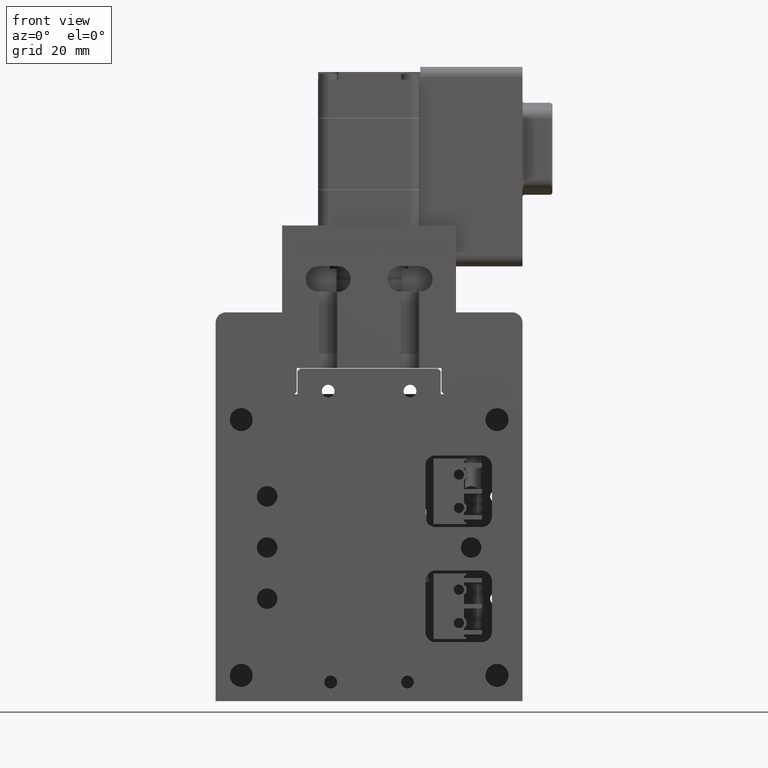
[diagram: clean part render]
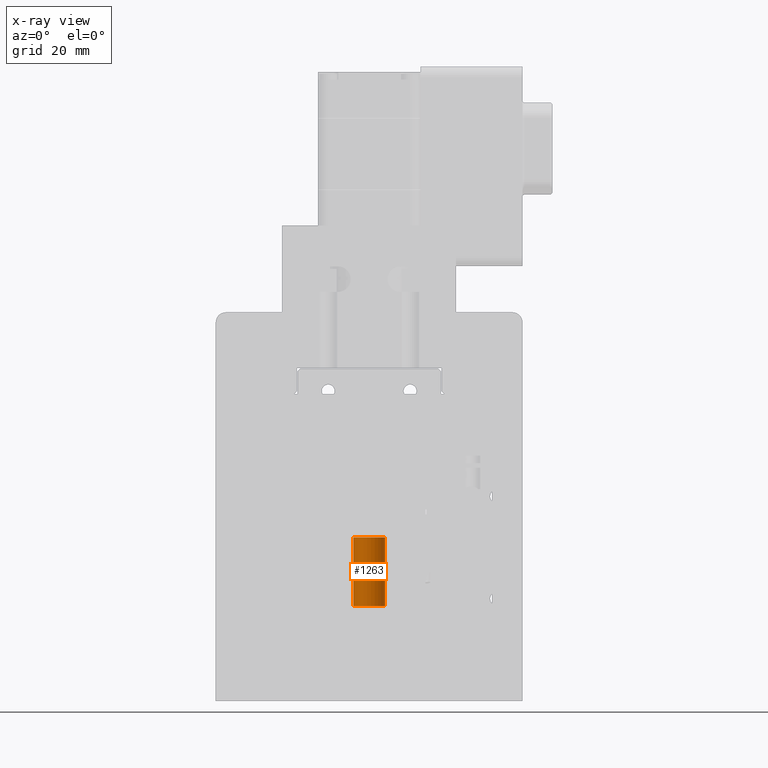
[diagram: x-ray — body ghosted, one internal face saturated and labeled with its STEP entity id]
A machine part, front view, then the same camera in x-ray: the body is ghosted and one INTERNAL B-rep face — a face not visible from any outside direction — is saturated and labeled: STEP entity #1263.
In plain terms, the highlighted cylindrical surface (edge-blend (fillet) strip) has radius 3.1 mm, axis along (-0, -0, -1).
Its self-contained STEP definition (entity closure, byte-faithful):
#178 = VERTEX_POINT ( 'NONE', #13297 ) ;
#1263 = ADVANCED_FACE ( 'NONE', ( #3171 ), #13630, .T. ) ;
#1401 = VECTOR ( 'NONE', #30462, 1000.000000000000000 ) ;
#2605 = AXIS2_PLACEMENT_3D ( 'NONE', #10799, #28682, #13406 ) ;
#2621 = CIRCLE ( 'NONE', #2605, 3.100000000000001000 ) ;
#2698 = VERTEX_POINT ( 'NONE', #4197 ) ;
#3171 = FACE_OUTER_BOUND ( 'NONE', #20297, .T. ) ;
#3283 = DIRECTION ( 'NONE',  ( -1.158893790358683100E-016, -1.290523771937503900E-017, -1.000000000000000000 ) ) ;
#3334 = CARTESIAN_POINT ( 'NONE',  ( -2.591719598807531000, -2.448187545985686300, 35.21421163981704400 ) ) ;
#4197 = CARTESIAN_POINT ( 'NONE',  ( 0.5082804011924684200, -2.448187545985685400, 64.48460270126950900 ) ) ;
#4380 = ORIENTED_EDGE ( 'NONE', *, *, #32506, .T. ) ;
#4789 = AXIS2_PLACEMENT_3D ( 'NONE', #8756, #26643, #11349 ) ;
#6356 = VECTOR ( 'NONE', #3283, 1000.000000000000000 ) ;
#7290 = CARTESIAN_POINT ( 'NONE',  ( -5.691719598807532400, -2.448187545985685900, 64.48460270126950900 ) ) ;
#8756 = CARTESIAN_POINT ( 'NONE',  ( -2.591719598807535000, -2.448187545985686300, 51.08236806439803200 ) ) ;
#10799 = CARTESIAN_POINT ( 'NONE',  ( -2.591719598807531900, -2.448187545985685900, 64.48460270126950900 ) ) ;
#10973 = DIRECTION ( 'NONE',  ( -1.158893790358683100E-016, -1.290523771937503900E-017, -1.000000000000000000 ) ) ;
#11349 = DIRECTION ( 'NONE',  ( 1.000000000000000000, 0.0000000000000000000, 0.0000000000000000000 ) ) ;
#12632 = CARTESIAN_POINT ( 'NONE',  ( 0.5082804011924702000, -2.448187545985685900, 35.21421163981704400 ) ) ;
#13193 = LINE ( 'NONE', #13532, #6356 ) ;
#13297 = CARTESIAN_POINT ( 'NONE',  ( 0.5082804011924654300, -2.448187545985685400, 51.08236806439803200 ) ) ;
#13406 = DIRECTION ( 'NONE',  ( -1.000000000000000000, 0.0000000000000000000, 0.0000000000000000000 ) ) ;
#13532 = CARTESIAN_POINT ( 'NONE',  ( -5.691719598807532400, -2.448187545985686300, 35.21421163981704400 ) ) ;
#13630 = CYLINDRICAL_SURFACE ( 'NONE', #32432, 3.100000000000001400 ) ;
#13688 = DIRECTION ( 'NONE',  ( -1.000000000000000000, 0.0000000000000000000, 0.0000000000000000000 ) ) ;
#15089 = ORIENTED_EDGE ( 'NONE', *, *, #18438, .T. ) ;
#17842 = EDGE_CURVE ( 'NONE', #26533, #20247, #13193, .T. ) ;
#18438 = EDGE_CURVE ( 'NONE', #178, #20247, #21885, .T. ) ;
#18828 = CARTESIAN_POINT ( 'NONE',  ( -5.691719598807536000, -2.448187545985686300, 51.08236806439803200 ) ) ;
#20247 = VERTEX_POINT ( 'NONE', #18828 ) ;
#20297 = EDGE_LOOP ( 'NONE', ( #4380, #29714, #15089, #22969 ) ) ;
#21023 = LINE ( 'NONE', #12632, #1401 ) ;
#21885 = CIRCLE ( 'NONE', #4789, 3.100000000000001000 ) ;
#22969 = ORIENTED_EDGE ( 'NONE', *, *, #17842, .F. ) ;
#25360 = EDGE_CURVE ( 'NONE', #2698, #178, #21023, .T. ) ;
#26533 = VERTEX_POINT ( 'NONE', #7290 ) ;
#26643 = DIRECTION ( 'NONE',  ( -1.101532052363948700E-015, 1.290523771937500600E-017, 1.000000000000000000 ) ) ;
#28682 = DIRECTION ( 'NONE',  ( 1.101532052363948700E-015, -1.290523771937500600E-017, -1.000000000000000000 ) ) ;
#29714 = ORIENTED_EDGE ( 'NONE', *, *, #25360, .T. ) ;
#30462 = DIRECTION ( 'NONE',  ( -1.158893790358683100E-016, -1.290523771937503900E-017, -1.000000000000000000 ) ) ;
#32432 = AXIS2_PLACEMENT_3D ( 'NONE', #3334, #10973, #13688 ) ;
#32506 = EDGE_CURVE ( 'NONE', #26533, #2698, #2621, .T. ) ;